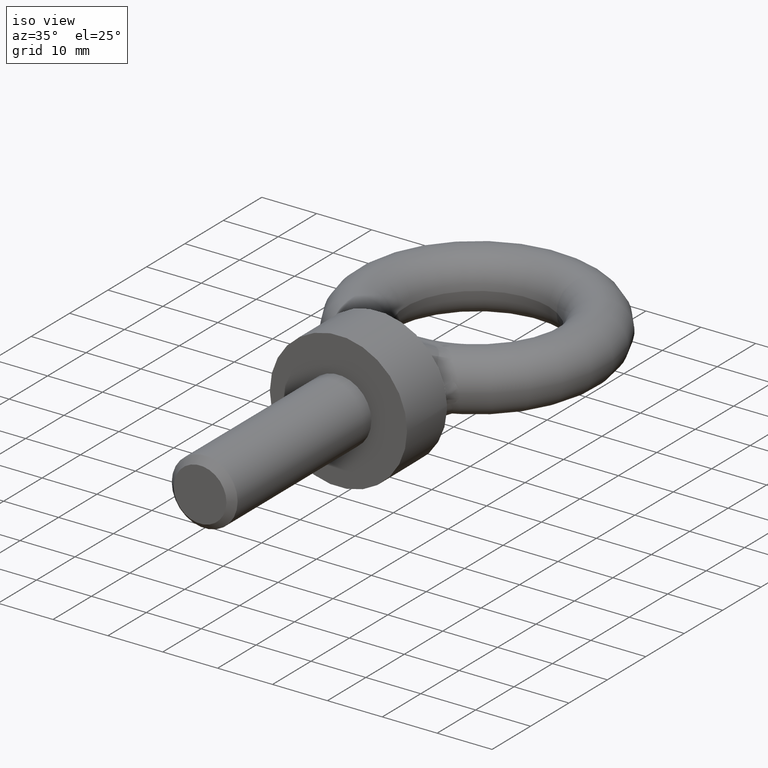
[diagram: clean part render]
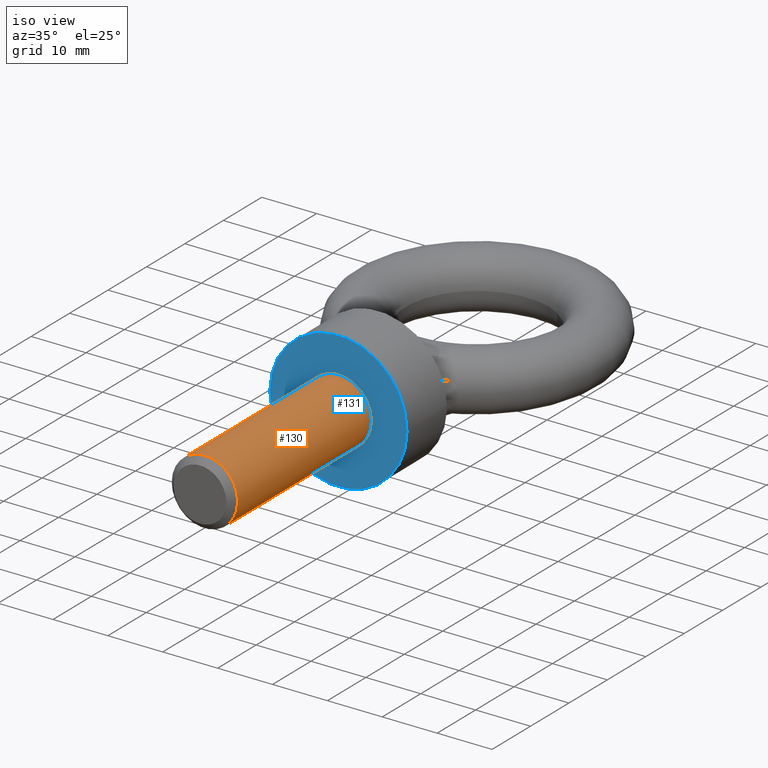
[diagram: same view with the hole feature highlighted: cylindrical wall and planar end face, labeled with their STEP entity ids]
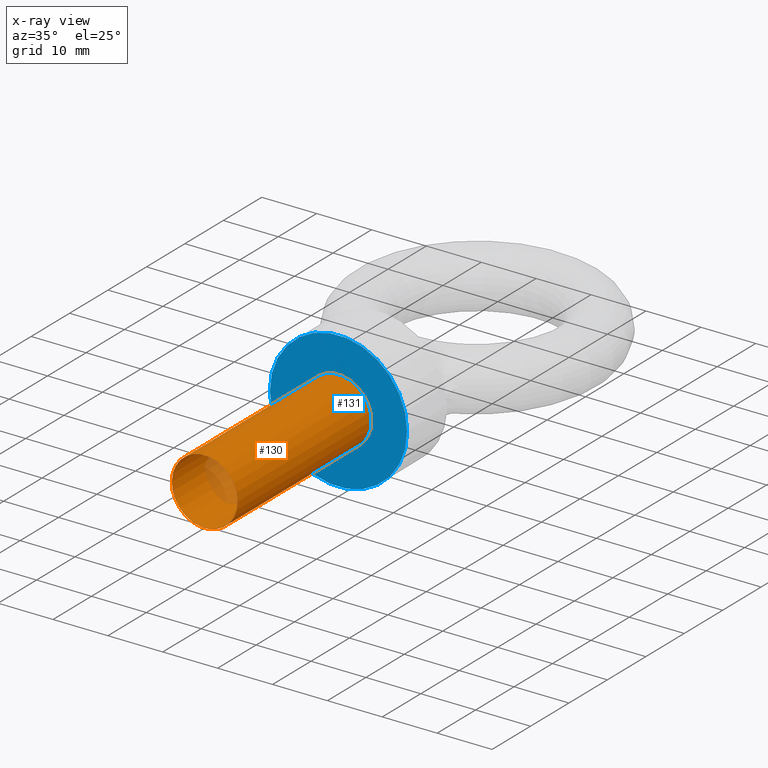
[diagram: x-ray of the same camera — body ghosted, the hole faces saturated]
A machine part, iso view. The highlighted faces form one hole feature of diameter 12 mm: the cylindrical wall (entity #130, orange) and its adjacent planar end face (entity #131, blue) — they share a circular edge in the B-rep.
The next image is the same camera in x-ray (body ghosted, the hole faces saturated) — the bore reads through the body.
Wall:
#80=FACE_BOUND('',#232,.T.);
#81=FACE_BOUND('',#233,.T.);
#105=CYLINDRICAL_SURFACE('',#679,6.);
#130=ADVANCED_FACE('',(#80,#81),#105,.T.);
#232=EDGE_LOOP('',(#352));
#233=EDGE_LOOP('',(#353));
#275=CIRCLE('',#677,6.);
#276=CIRCLE('',#678,6.);
#352=ORIENTED_EDGE('',*,*,#566,.T.);
#353=ORIENTED_EDGE('',*,*,#567,.F.);
#506=VERTEX_POINT('',#1142);
#507=VERTEX_POINT('',#1144);
#566=EDGE_CURVE('',#506,#506,#275,.T.);
#567=EDGE_CURVE('',#507,#507,#276,.T.);
#677=AXIS2_PLACEMENT_3D('',#1141,#777,#778);
#678=AXIS2_PLACEMENT_3D('',#1143,#779,#780);
#679=AXIS2_PLACEMENT_3D('',#1145,#781,#782);
#777=DIRECTION('',(-9.78092166106799E-19,1.,0.));
#778=DIRECTION('',(-1.,0.,0.));
#779=DIRECTION('',(-9.780921661068E-19,1.,0.));
#780=DIRECTION('',(-1.,-9.780921661068E-19,0.));
#781=DIRECTION('',(-9.780921661068E-19,1.,0.));
#782=DIRECTION('',(-1.,0.,0.));
#1141=CARTESIAN_POINT('',(5.13987433289123E-17,-34.8,0.));
#1142=CARTESIAN_POINT('',(-6.,-34.8,0.));
#1143=CARTESIAN_POINT('',(1.73611359483957E-17,0.,0.));
#1144=CARTESIAN_POINT('',(-6.,-5.8685529966408E-18,0.));
#1145=CARTESIAN_POINT('',(5.25724539282405E-17,-36.,0.));
End face:
#82=FACE_BOUND('',#234,.T.);
#83=FACE_BOUND('',#235,.T.);
#91=PLANE('',#681);
#131=ADVANCED_FACE('',(#82,#83),#91,.F.);
#234=EDGE_LOOP('',(#354));
#235=EDGE_LOOP('',(#355));
#276=CIRCLE('',#678,6.);
#277=CIRCLE('',#680,12.5);
#354=ORIENTED_EDGE('',*,*,#568,.F.);
#355=ORIENTED_EDGE('',*,*,#567,.T.);
#507=VERTEX_POINT('',#1144);
#508=VERTEX_POINT('',#1147);
#567=EDGE_CURVE('',#507,#507,#276,.T.);
#568=EDGE_CURVE('',#508,#508,#277,.T.);
#678=AXIS2_PLACEMENT_3D('',#1143,#779,#780);
#680=AXIS2_PLACEMENT_3D('',#1146,#783,#784);
#681=AXIS2_PLACEMENT_3D('',#1148,#785,#786);
#779=DIRECTION('',(-9.780921661068E-19,1.,0.));
#780=DIRECTION('',(-1.,-9.780921661068E-19,0.));
#783=DIRECTION('',(-9.780921661068E-19,1.,0.));
#784=DIRECTION('',(-1.,-9.780921661068E-19,0.));
#785=DIRECTION('',(-9.780921661068E-19,1.,0.));
#786=DIRECTION('',(-1.,-9.780921661068E-19,0.));
#1143=CARTESIAN_POINT('',(1.73611359483957E-17,0.,0.));
#1144=CARTESIAN_POINT('',(-6.,-5.8685529966408E-18,0.));
#1146=CARTESIAN_POINT('',(1.73611359483957E-17,0.,0.));
#1147=CARTESIAN_POINT('',(-12.5,-1.2226152076335E-17,0.));
#1148=CARTESIAN_POINT('',(6.,3.33599070225675E-16,0.));